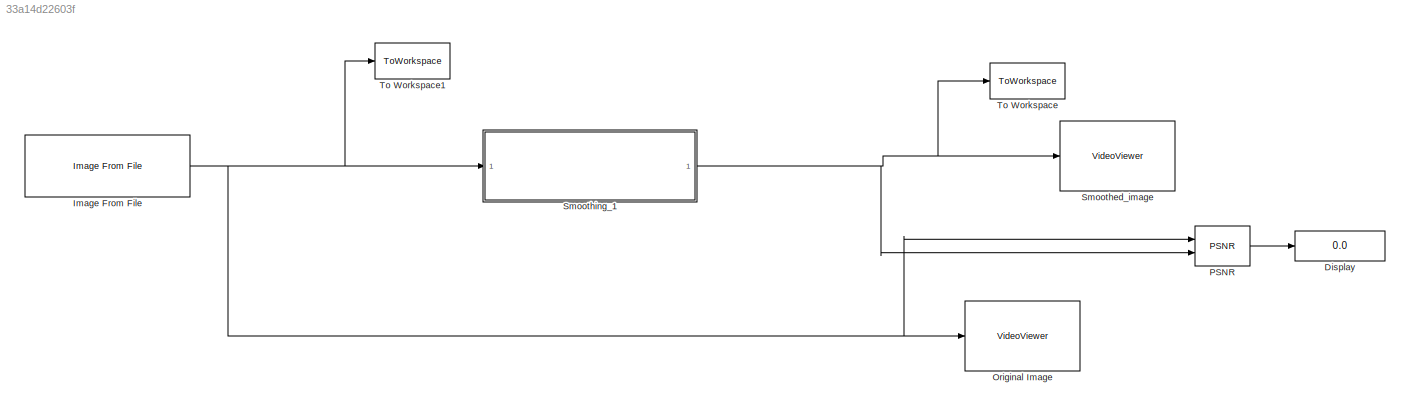
MODEL slx_33a14d22603f
KIND model
CONFIG AbsTol = auto
CONFIG EnableMultiTasking = off
CONFIG FixedStep = auto
CONFIG MaxStep = auto
CONFIG MinStep = auto
CONFIG RelTol = 1e-3
CONFIG SampleTimeConstraint = Unconstrained
CONFIG Solver = VariableStepAuto
CONFIG SolverName = VariableStepAuto
CONFIG StartTime = 0.0
CONFIG StopTime = 10.0
BLOCK [Display] Display
  Decimation = 1
  Ports = [1]
BLOCK [Reference] Image From File  REF=visionsources/Image From File
  Ports = [0, 1]
  SourceBlock = visionsources/Image From File
  SourceProductBaseCode = VP
  SourceProductName = Computer Vision System Toolbox
  SourceType = Image From File
  Tag = vipblks_nd
BLOCK [VideoViewer] Original Image
  FigPos = [313 917 376 593]
  Ports = [1]
  ScopeSpecificationString = vipscopes.VideoViewerScopeCfg('CurrentConfiguration', extmgr.ConfigurationSet(extmgr.Configuration('Core','General UI',true),extmgr.Configuration('Core','Source UI',true),extmgr.Configuration('Sources','WiredSimulink',true),extmgr.Configuration('Visuals','Video',true),extmgr.Configuration('Tools','Image Navigation Tools',true),extmgr.Configuration('Tools','Image Tool',true),extmgr.Configuration('T...<+101ch>
  colormapValue = gray(256)
BLOCK [Reference] PSNR  REF=visionstatistics/PSNR
  Ports = [2, 1]
  SourceBlock = visionstatistics/PSNR
  SourceProductBaseCode = VP
  SourceProductName = Computer Vision System Toolbox
  SourceType = PSNR
BLOCK [VideoViewer] Smoothed_image
  FigPos = [708 876 361 543]
  Ports = [1]
  ScopeSpecificationString = vipscopes.VideoViewerScopeCfg('CurrentConfiguration', extmgr.ConfigurationSet(extmgr.Configuration('Core','General UI',true),extmgr.Configuration('Core','Source UI',true),extmgr.Configuration('Sources','WiredSimulink',true),extmgr.Configuration('Visuals','Video',true),extmgr.Configuration('Tools','Image Navigation Tools',true),extmgr.Configuration('Tools','Image Tool',true),extmgr.Configuration('T...<+75ch>
  colormapValue = gray(256)
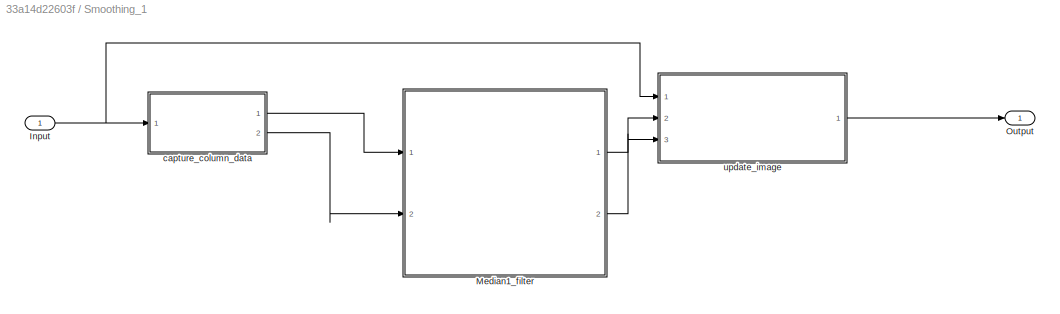
BLOCK [SubSystem] Smoothing_1
  Ports = [1, 1]
  RequestExecContextInheritance = off
  TreatAsAtomicUnit = on
BLOCK [Inport] Smoothing_1/Input
  IconDisplay = Port number
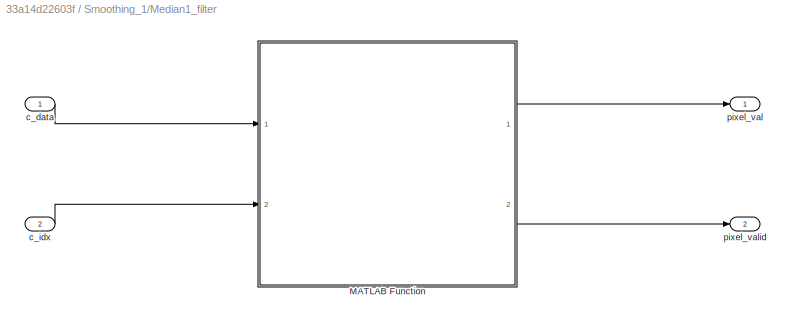
BLOCK [SubSystem] Smoothing_1/Median1_filter
  Ports = [2, 2]
  RequestExecContextInheritance = off
  TreatAsAtomicUnit = on
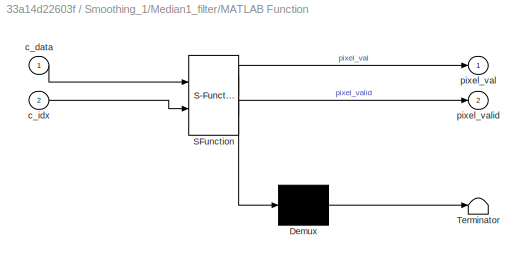
BLOCK [SubSystem] Smoothing_1/Median1_filter/MATLAB Function
  ErrorFcn = Stateflow.Translate.translate
  PermitHierarchicalResolution = ExplicitOnly
  Ports = [2, 2]
  RequestExecContextInheritance = off
  SFBlockType = MATLAB Function
  TreatAsAtomicUnit = on
BLOCK [Demux] Smoothing_1/Median1_filter/MATLAB Function/ Demux 
  Outputs = 1
  Ports = [1, 1]
BLOCK [S-Function] Smoothing_1/Median1_filter/MATLAB Function/ SFunction 
  EnableBusSupport = on
  FunctionName = sf_sfun
  PortCounts = [2 3]
  Ports = [2, 3]
  SFcnIsStateOwnerBlock = off
  SFunctionDeploymentMode = off
  Tag = Stateflow S-Function smooth27 1
BLOCK [Terminator] Smoothing_1/Median1_filter/MATLAB Function/ Terminator 
BLOCK [Inport] Smoothing_1/Median1_filter/MATLAB Function/c_data
  IconDisplay = Port number
BLOCK [Inport] Smoothing_1/Median1_filter/MATLAB Function/c_idx
  IconDisplay = Port number
  Port = 2
BLOCK [Outport] Smoothing_1/Median1_filter/MATLAB Function/pixel_val
  IconDisplay = Port number
BLOCK [Outport] Smoothing_1/Median1_filter/MATLAB Function/pixel_valid
  IconDisplay = Port number
  Port = 2
BLOCK [Inport] Smoothing_1/Median1_filter/c_data
  IconDisplay = Port number
BLOCK [Inport] Smoothing_1/Median1_filter/c_idx
  IconDisplay = Port number
  Port = 2
BLOCK [Outport] Smoothing_1/Median1_filter/pixel_val
  IconDisplay = Port number
BLOCK [Outport] Smoothing_1/Median1_filter/pixel_valid
  IconDisplay = Port number
  Port = 2
BLOCK [Outport] Smoothing_1/Output
  IconDisplay = Port number
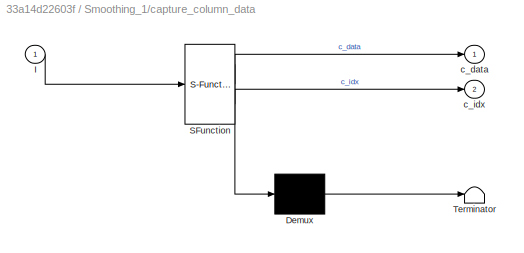
BLOCK [SubSystem] Smoothing_1/capture_column_data
  ErrorFcn = Stateflow.Translate.translate
  PermitHierarchicalResolution = ExplicitOnly
  Ports = [1, 2]
  RequestExecContextInheritance = off
  SFBlockType = MATLAB Function
  TreatAsAtomicUnit = on
BLOCK [Demux] Smoothing_1/capture_column_data/ Demux 
  Outputs = 1
  Ports = [1, 1]
BLOCK [S-Function] Smoothing_1/capture_column_data/ SFunction 
  EnableBusSupport = on
  FunctionName = sf_sfun
  PortCounts = [1 3]
  Ports = [1, 3]
  SFcnIsStateOwnerBlock = off
  SFunctionDeploymentMode = off
  Tag = Stateflow S-Function smooth27 7
BLOCK [Terminator] Smoothing_1/capture_column_data/ Terminator 
BLOCK [Inport] Smoothing_1/capture_column_data/I
  IconDisplay = Port number
BLOCK [Outport] Smoothing_1/capture_column_data/c_data
  IconDisplay = Port number
BLOCK [Outport] Smoothing_1/capture_column_data/c_idx
  IconDisplay = Port number
  Port = 2
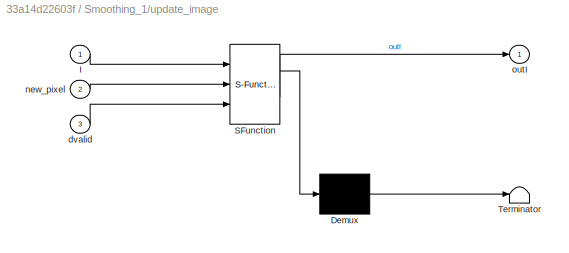
BLOCK [SubSystem] Smoothing_1/update_image
  ErrorFcn = Stateflow.Translate.translate
  PermitHierarchicalResolution = ExplicitOnly
  Ports = [3, 1]
  RequestExecContextInheritance = off
  SFBlockType = MATLAB Function
  TreatAsAtomicUnit = on
BLOCK [Demux] Smoothing_1/update_image/ Demux 
  Outputs = 1
  Ports = [1, 1]
BLOCK [S-Function] Smoothing_1/update_image/ SFunction 
  EnableBusSupport = on
  FunctionName = sf_sfun
  PortCounts = [3 2]
  Ports = [3, 2]
  SFcnIsStateOwnerBlock = off
  SFunctionDeploymentMode = off
  Tag = Stateflow S-Function smooth27 8
BLOCK [Terminator] Smoothing_1/update_image/ Terminator 
BLOCK [Inport] Smoothing_1/update_image/I
  IconDisplay = Port number
BLOCK [Inport] Smoothing_1/update_image/dvalid
  IconDisplay = Port number
  Port = 3
BLOCK [Inport] Smoothing_1/update_image/new_pixel
  IconDisplay = Port number
  Port = 2
BLOCK [Outport] Smoothing_1/update_image/outI
  IconDisplay = Port number
BLOCK [ToWorkspace] To Workspace
  FixptAsFi = on
  MaxDataPoints = inf
  Ports = [1]
  SampleTime = -1
  Save2DSignal = 2-D array (concatenate along first dimension)
  VariableName = MedianOut
BLOCK [ToWorkspace] To Workspace1
  FixptAsFi = on
  MaxDataPoints = inf
  Ports = [1]
  SampleTime = -1
  Save2DSignal = 2-D array (concatenate along first dimension)
  VariableName = MedianIn
NET Image From File:1 -> Original Image:1, PSNR:1, Smoothing_1:1, To Workspace1:1
LINE PSNR:1 -> Display:1
NET Smoothing_1/Input:1 -> Smoothing_1/capture_column_data:1, Smoothing_1/update_image:1
LINE Smoothing_1/Median1_filter/MATLAB Function:1 -> Smoothing_1/Median1_filter/pixel_val:1
LINE Smoothing_1/Median1_filter/MATLAB Function:2 -> Smoothing_1/Median1_filter/pixel_valid:1
LINE Smoothing_1/Median1_filter/c_data:1 -> Smoothing_1/Median1_filter/MATLAB Function:1
LINE Smoothing_1/Median1_filter/c_idx:1 -> Smoothing_1/Median1_filter/MATLAB Function:2
LINE Smoothing_1/Median1_filter:1 -> Smoothing_1/update_image:2
LINE Smoothing_1/Median1_filter:2 -> Smoothing_1/update_image:3
LINE Smoothing_1/capture_column_data:1 -> Smoothing_1/Median1_filter:1
LINE Smoothing_1/capture_column_data:2 -> Smoothing_1/Median1_filter:2
LINE Smoothing_1/update_image:1 -> Smoothing_1/Output:1
NET Smoothing_1:1 -> PSNR:2, Smoothed_image:1, To Workspace:1
note: NET lines group one-source signal fan-out (src -> all destinations, sorted); 1:1 wires keep LINE
CHART Smoothing_1/Median1_filter/MATLAB Function states=1 transitions=1
  STATE_LABEL 'eML_blk_kernel()'
  STATE_LABEL "SCRIPT:\n%   <copyright redacted>\n\n%I = imread('mlhdlc_img_pattern_noisy.tif');\n% function J   = mlhdlc_median_filter_TB1(I)\n% %I = imread('2_1.png');\n% J = I;\n% \n% smax = 9;\n% [nrows, ncols] = size(I);\n% ll = ceil(smax/2);\n% ul = floor(smax/2);\n% c_data = uint8(zeros(9,1));\n% for ii=1:ncols-smax\n%     for jj=1:nrows-smax\n%         \n%         c_idx = ii;                    \n%    ...<+3608ch>"
CHART Smoothing_1/capture_column_data states=1 transitions=1
  STATE_LABEL 'eML_blk_kernel()'
  STATE_LABEL 'SCRIPT:\nfunction [c_data, c_idx] = get_data(I)\n% return a 1x9 column at a time from the Image\n\nsmax = 9;\n\n[nrows, ncols] = size(I);\n\npersistent col_idx;\npersistent row_idx;\n\nif isempty(row_idx)\n    row_idx = uint32(1);\n    col_idx = uint32(1);\nend\n\nc_idx = col_idx;\n\nc_data = uint8(zeros(1,smax));\n\nfor ii=1:smax\n    c_data(ii) = I(row_idx+ii-1, c_idx);\nend\n\n\nif (col_idx == ncols)\n    col_idx = uint...<+165ch>'
CHART Smoothing_1/update_image states=1 transitions=1
  STATE_LABEL 'eML_blk_kernel()'
  STATE_LABEL 'SCRIPT:\nfunction outI  = reconstruct_data(I, new_pixel, dvalid)\n\nsmax = 9;\n\n% center pixel\ncp = uint32(ceil(smax/2));\n\n[nrows, ncols] = size(I);\n\npersistent newI;\nif isempty(newI)\n    newI = I;\nend\n\npersistent col_idx;\npersistent row_idx;\n\nif isempty(row_idx)\n    row_idx = cp;\n    col_idx = cp;\nend\n\noutI = newI;\n\nif dvalid == true\n    newI(row_idx, col_idx) = new_pixel;\n    \n    if (col_idx == nco...<+202ch>'
